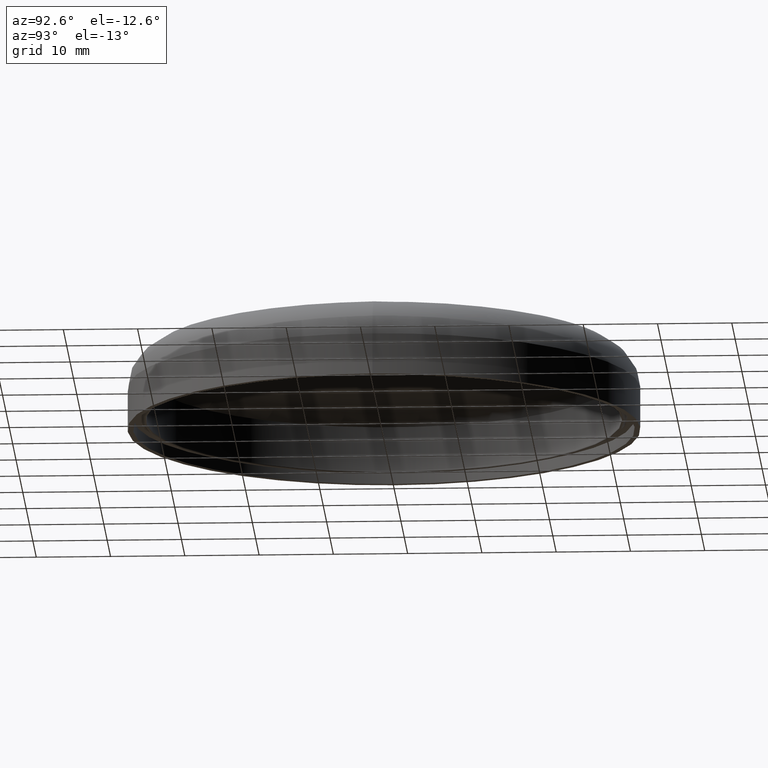
[diagram: clean part render]
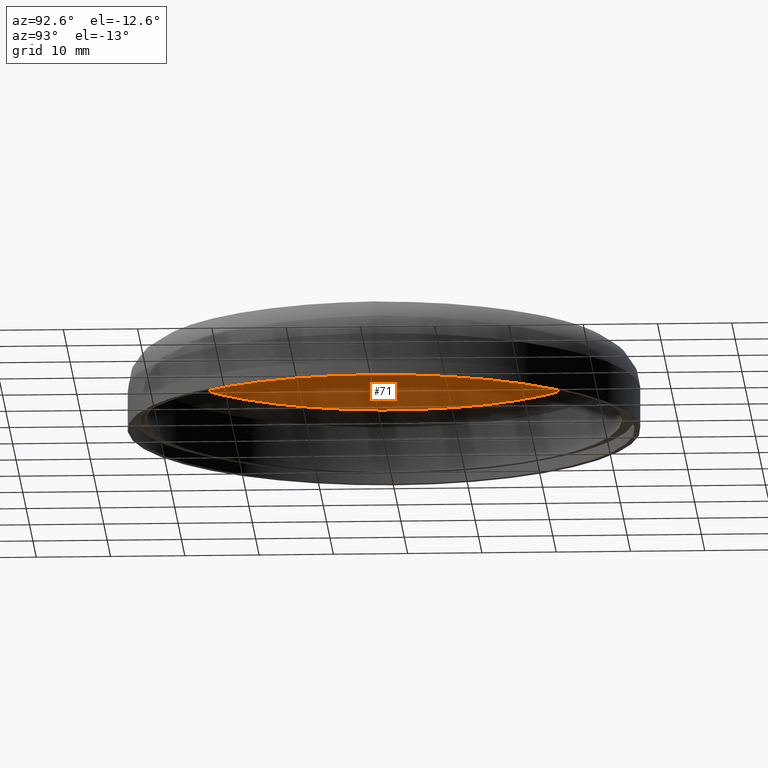
[diagram: same view with one face highlighted and labeled with its STEP entity id]
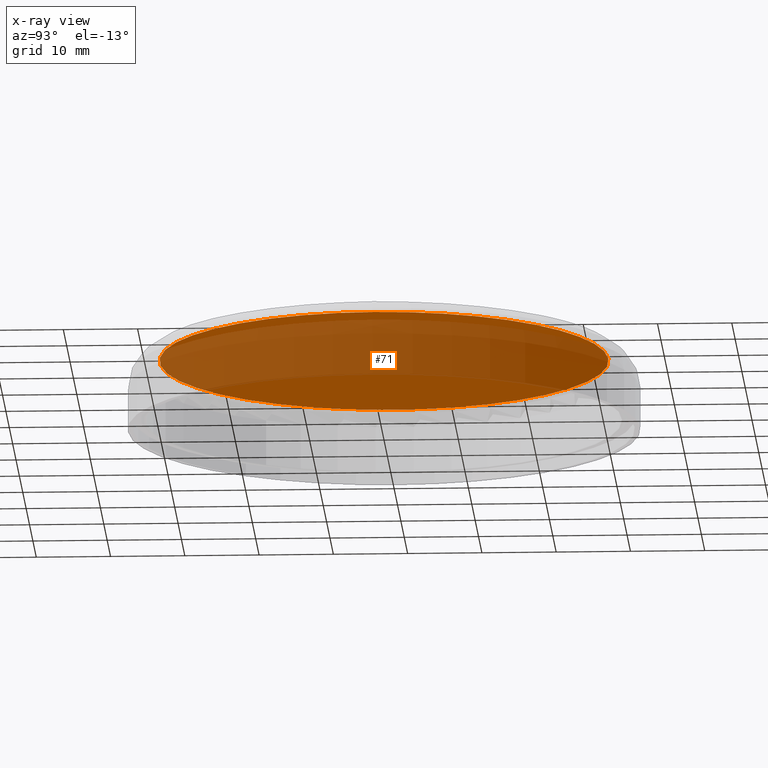
[diagram: x-ray of the same camera — body ghosted, the highlighted face saturated]
A machine part, auxiliary view. The second image highlights one B-rep face of the part: STEP entity #71.
The next image is the same camera in x-ray: the body ghosted, the highlighted face saturated — about 66% of this face is hidden behind the body in this view.
In plain terms, the highlighted spherical surface has radius 290.452 mm.
Its self-contained STEP definition (entity closure, byte-faithful):
#71=ADVANCED_FACE('',(#75),#73,.F.);
#73=SPHERICAL_SURFACE('',#167,290.451728391482);
#75=FACE_OUTER_BOUND('',#95,.T.);
#95=EDGE_LOOP('',(#115));
#115=ORIENTED_EDGE('',*,*,#135,.F.);
#125=VERTEX_POINT('',#241);
#135=EDGE_CURVE('',#125,#125,#145,.T.);
#145=CIRCLE('',#165,30.2080070739544);
#165=AXIS2_PLACEMENT_3D('',#240,#206,#207);
#167=AXIS2_PLACEMENT_3D('',#243,#210,#211);
#206=DIRECTION('',(0.,0.,1.));
#207=DIRECTION('',(1.,0.,0.));
#210=DIRECTION('',(0.,6.12323399573677E-017,1.));
#211=DIRECTION('',(0.,1.,0.));
#240=CARTESIAN_POINT('',(0.,0.,9.42485915796806));
#241=CARTESIAN_POINT('',(30.2080070739544,0.,9.42485915796806));
#243=CARTESIAN_POINT('',(0.,0.,-279.451728391489));